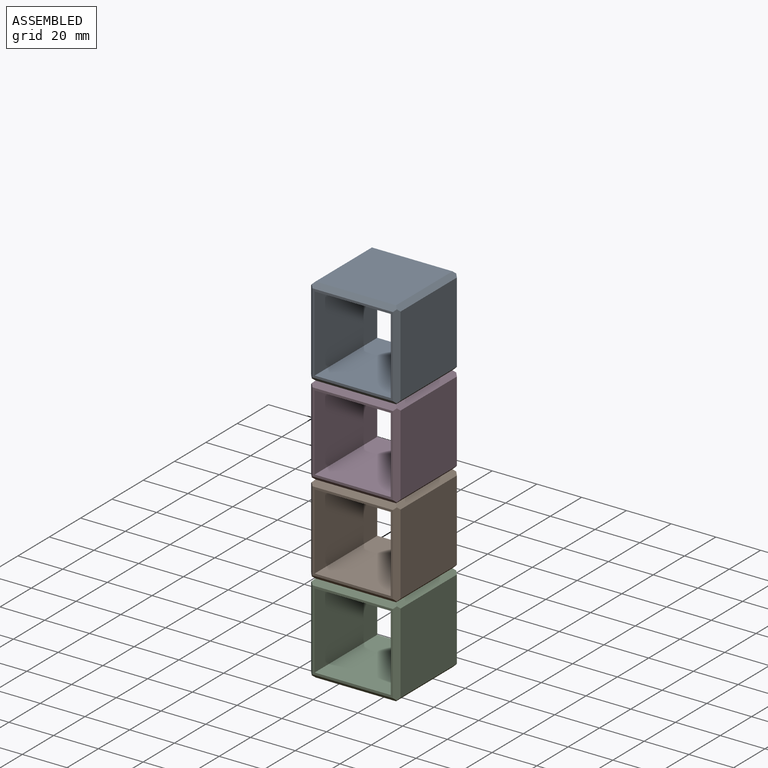
[diagram: assembled view]
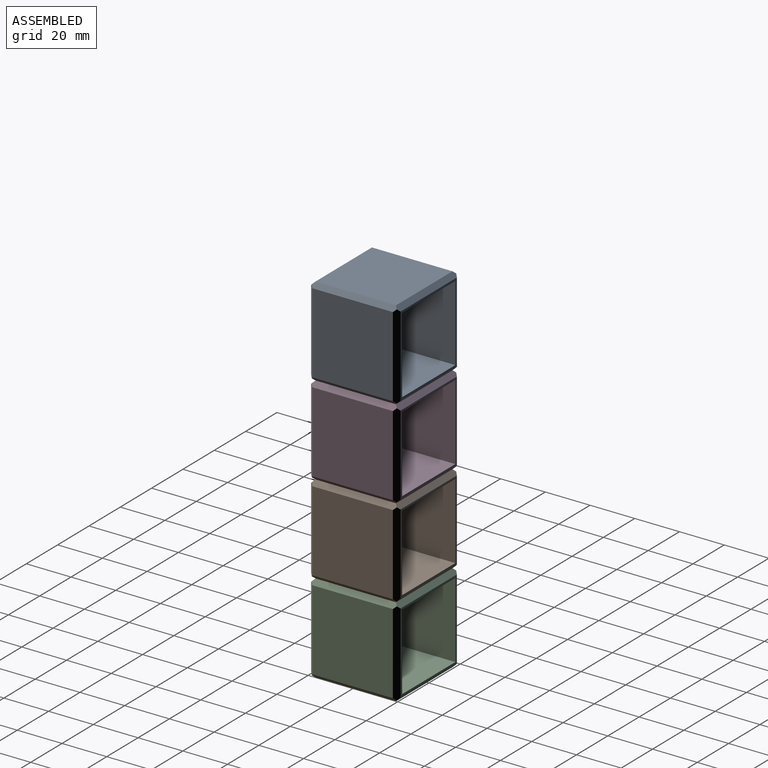
[diagram: assembled view, second angle]
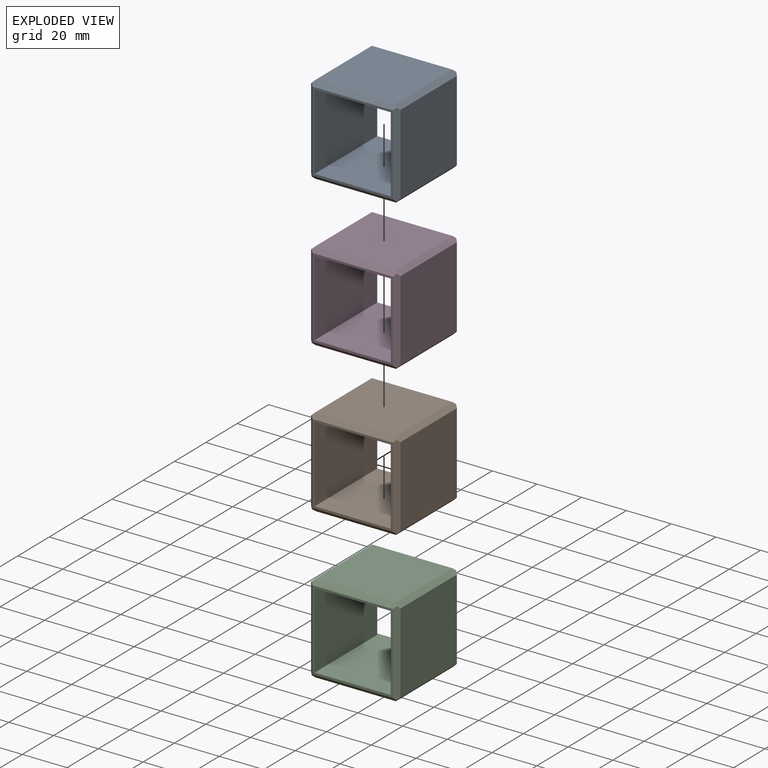
[diagram: exploded view]
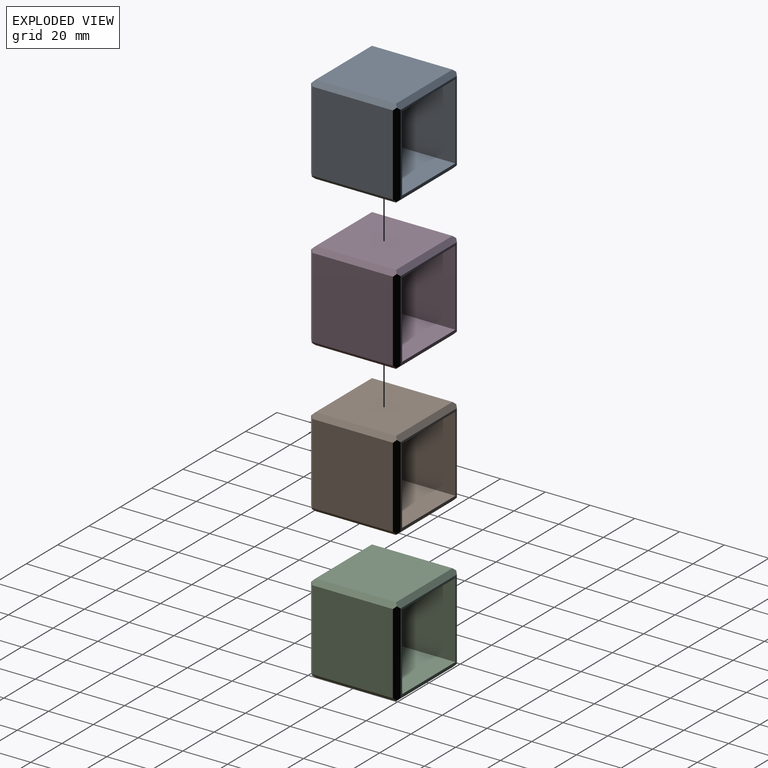
[diagram: exploded view, second angle]
ASSEMBLY  parts=4 mates=3
PART A: 22 faces, bbox 40x40x40 mm
  f0: plane 36x36mm, normal (0,0,1), area 1296mm2, adj f12,f13,f14,f19
  f1: plane 36x36mm, normal (-1,0,0), area 1296mm2, adj f10,f13,f15,f18
  f2: plane 36x36mm, normal (0,0,-1), area 1296mm2, adj f10,f11,f17,f20
  f3: plane 40x34mm, normal (1,0,0), area 1360mm2, adj f4,f6,f8,f9
  f4: plane 40x34mm, normal (0,0,-1), area 1360mm2, adj f3,f5,f8,f9
  f5: plane 40x34mm, normal (-1,0,0), area 1360mm2, adj f4,f6,f8,f9
  f6: plane 40x34mm, normal (0,0,1), area 1360mm2, adj f3,f5,f8,f9
  f7: plane 36x36mm, normal (1,0,0), area 1296mm2, adj f11,f12,f16,f21
  f8: plane 36x36mm, normal (0,-1,0), area 140mm2, adj f3,f4,f5,f6,f14,f15,f16,f17
  f9: plane 36x36mm, normal (0,1,0), area 140mm2, adj f3,f4,f5,f6,f18,f19,f20,f21
  f10: plane 38x2mm, normal (-0.71,0,-0.71), area 104.7mm2, adj f1,f2,f15,f17,f18,f20
  f11: plane 38x2mm, normal (0.71,0,-0.71), area 104.7mm2, adj f2,f7,f16,f17,f20,f21
  f12: plane 38x2mm, normal (0.71,0,0.71), area 104.7mm2, adj f0,f7,f14,f16,f19,f21
  f13: plane 38x2mm, normal (-0.71,0,0.71), area 104.7mm2, adj f0,f1,f14,f15,f18,f19
  f14: plane 38x2mm, normal (0,-0.71,0.71), area 104.7mm2, adj f0,f8,f12,f13,f15,f16
  f15: plane 38x2mm, normal (-0.71,-0.71,0), area 104.7mm2, adj f1,f8,f10,f13,f14,f17
  f16: plane 38x2mm, normal (0.71,-0.71,0), area 104.7mm2, adj f7,f8,f11,f12,f14,f17
  f17: plane 38x2mm, normal (0,-0.71,-0.71), area 104.7mm2, adj f2,f8,f10,f11,f15,f16
  f18: plane 38x2mm, normal (-0.71,0.71,0), area 104.7mm2, adj f1,f9,f10,f13,f19,f20
  f19: plane 38x2mm, normal (0,0.71,0.71), area 104.7mm2, adj f0,f9,f12,f13,f18,f21
  f20: plane 38x2mm, normal (0,0.71,-0.71), area 104.7mm2, adj f2,f9,f10,f11,f18,f21
  f21: plane 38x2mm, normal (0.71,0.71,0), area 104.7mm2, adj f7,f9,f11,f12,f19,f20
PART B: same geometry as A
PART C: same geometry as A
PART D: same geometry as A
PLACE A rot(axis=(1,0,0),180deg) t=(116.15,-5.14,13.52)mm
PLACE B t=(116.15,34.86,-103.11)mm
PLACE C t=(116.15,34.86,-143.11)mm
PLACE D t=(116.15,34.86,-63.11)mm
MATE fastened D.f0 <-> A.f0  axis (0,0,1) through (81.29,14.86,-24.8)mm
MATE fastened C.f0 <-> B.f2  axis (0,0,1) through (81.29,14.86,-104.8)mm
MATE fastened D.f2 <-> B.f0  axis (0,0,-1) through (81.29,14.86,-64.8)mm
